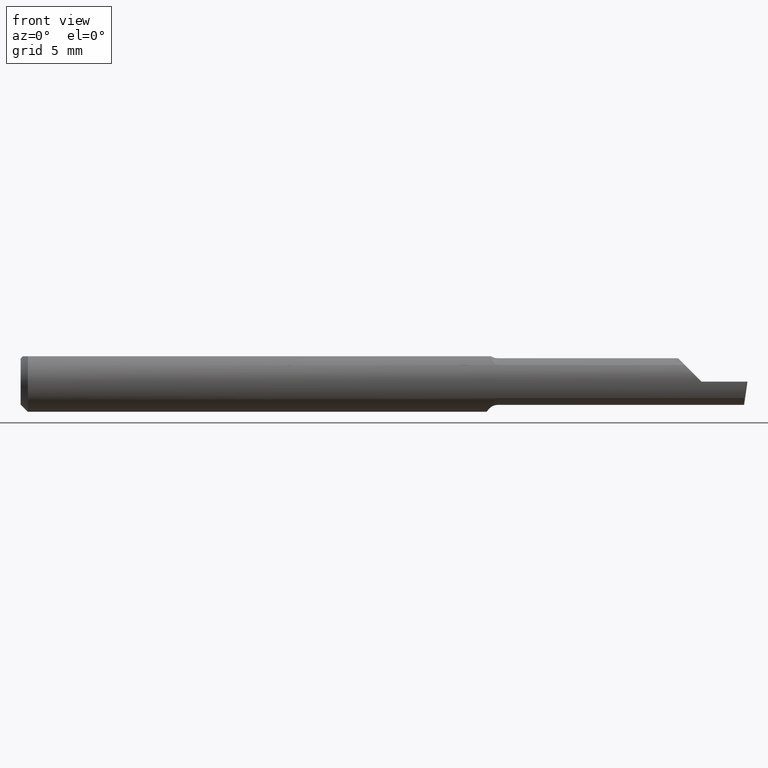
[diagram: clean part render]
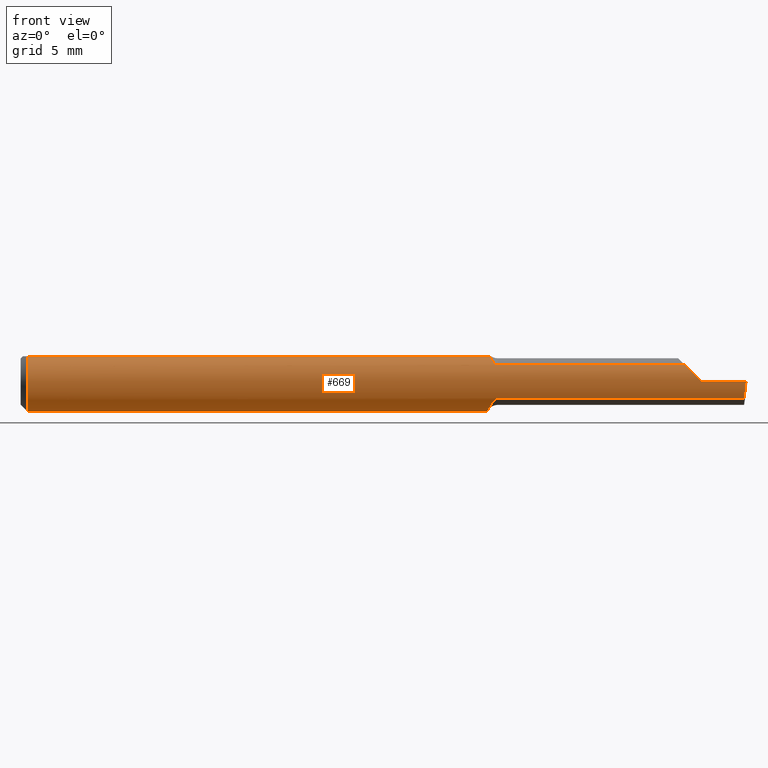
[diagram: same view with one face highlighted and labeled with its STEP entity id]
A machine part, front view. The second image highlights one B-rep face of the part: STEP entity #669.
In plain terms, the highlighted cylindrical surface (edge-blend (fillet) strip) has radius 1.5837 mm, axis along (-1, -0, -0).
Its self-contained STEP definition (entity closure, byte-faithful):
#2 = VECTOR ( 'NONE', #396, 39.37007874015748143 ) ;
#5 = CARTESIAN_POINT ( 'NONE',  ( 0.9752324438157199404, -0.04692169178955603315, 0.04112849538229048502 ) ) ;
#6 = EDGE_CURVE ( 'NONE', #323, #486, #414, .T. ) ;
#10 = CARTESIAN_POINT ( 'NONE',  ( 0.9828708008506147342, -0.05210000000000012538, -0.03425072991922926968 ) ) ;
#15 = VERTEX_POINT ( 'NONE', #621 ) ;
#42 = CARTESIAN_POINT ( 'NONE',  ( 0.9697417421283762717, -0.03819491529868387220, 0.04955034320923033808 ) ) ;
#50 = EDGE_CURVE ( 'NONE', #486, #735, #685, .T. ) ;
#60 = FACE_OUTER_BOUND ( 'NONE', #545, .T. ) ;
#61 = DIRECTION ( 'NONE',  ( -1.000000000000000000, -0.0000000000000000000, -0.0000000000000000000 ) ) ;
#67 = EDGE_CURVE ( 'NONE', #72, #228, #284, .T. ) ;
#72 = VERTEX_POINT ( 'NONE', #632 ) ;
#78 = CARTESIAN_POINT ( 'NONE',  ( 0.9639435274990673097, -0.01839999999999995459, -0.05957316929625284391 ) ) ;
#80 = ORIENTED_EDGE ( 'NONE', *, *, #563, .F. ) ;
#83 = AXIS2_PLACEMENT_3D ( 'NONE', #308, #733, #376 ) ;
#84 = CARTESIAN_POINT ( 'NONE',  ( 1.199999999999999956, -0.05210000000000007681, 0.03425072991922935295 ) ) ;
#85 = LINE ( 'NONE', #84, #714 ) ;
#86 = CARTESIAN_POINT ( 'NONE',  ( 0.0000000000000000000, -0.03386738844375222768, 0.05234999999999997988 ) ) ;
#92 = DIRECTION ( 'NONE',  ( 1.000000000000000000, 0.0000000000000000000, 0.0000000000000000000 ) ) ;
#96 = VERTEX_POINT ( 'NONE', #493 ) ;
#116 = CARTESIAN_POINT ( 'NONE',  ( 1.405000000000000249, -0.06235000000000005121, 1.163414459189982046E-17 ) ) ;
#118 = CARTESIAN_POINT ( 'NONE',  ( 1.380994055934046782, -0.05883495956508443675, 0.02400594406595336905 ) ) ;
#123 = VERTEX_POINT ( 'NONE', #749 ) ;
#131 = CARTESIAN_POINT ( 'NONE',  ( 0.9602082692914427620, 0.01460127996857734853, -0.06118787137580497526 ) ) ;
#142 = CARTESIAN_POINT ( 'NONE',  ( 0.9599999999999999645, 0.02282614954852000763, -0.05862499217990970596 ) ) ;
#149 = ORIENTED_EDGE ( 'NONE', *, *, #480, .T. ) ;
#153 = CARTESIAN_POINT ( 'NONE',  ( 1.199999999999999956, -0.05210000000000007681, -0.03425072991922935295 ) ) ;
#155 = CARTESIAN_POINT ( 'NONE',  ( 2.249639673992775738E-32, -0.06234999999999999570, 1.836970198721025250E-16 ) ) ;
#166 = LINE ( 'NONE', #505, #2 ) ;
#173 = CARTESIAN_POINT ( 'NONE',  ( 0.9613962500143420353, -0.002002297547419323084, -0.06287403108402092600 ) ) ;
#183 = CARTESIAN_POINT ( 'NONE',  ( 0.9623860608652277104, -0.01052139226165770339, -0.06200658662318050268 ) ) ;
#184 = CARTESIAN_POINT ( 'NONE',  ( 0.01500000000000000465, 0.0000000000000000000, 0.0000000000000000000 ) ) ;
#186 = DIRECTION ( 'NONE',  ( 1.000000000000000000, 0.0000000000000000000, 0.0000000000000000000 ) ) ;
#189 = DIRECTION ( 'NONE',  ( 0.0000000000000000000, 0.0000000000000000000, -1.000000000000000000 ) ) ;
#208 = DIRECTION ( 'NONE',  ( -1.000000000000000000, -0.0000000000000000000, -0.0000000000000000000 ) ) ;
#214 = CARTESIAN_POINT ( 'NONE',  ( 0.01500000000000000465, 0.03386738844375223462, 0.05234999999999997988 ) ) ;
#222 = DIRECTION ( 'NONE',  ( -1.000000000000000000, -0.0000000000000000000, -0.0000000000000000000 ) ) ;
#228 = VERTEX_POINT ( 'NONE', #770 ) ;
#230 = CIRCLE ( 'NONE', #661, 0.06235000000000000264 ) ;
#245 = CARTESIAN_POINT ( 'NONE',  ( 1.392739685260043325, -0.06235000000000000264, 0.01226031473995679161 ) ) ;
#252 = CYLINDRICAL_SURFACE ( 'NONE', #699, 0.06235000000000000264 ) ;
#262 = CARTESIAN_POINT ( 'NONE',  ( 0.9768557543361661155, -0.04856891343705597303, -0.03913748562448250701 ) ) ;
#265 = CARTESIAN_POINT ( 'NONE',  ( 0.9736313994831701235, -0.04510599191766692662, -0.04319271381807381766 ) ) ;
#266 = CARTESIAN_POINT ( 'NONE',  ( 1.494315395341277553, -0.05883495956508440899, -0.02400594406595344885 ) ) ;
#267 = CARTESIAN_POINT ( 'NONE',  ( 0.9719606783407127581, -0.04239780856895213057, -0.04588180363204267392 ) ) ;
#272 = CARTESIAN_POINT ( 'NONE',  ( 0.9810018602471947124, -0.05138041438525052518, -0.03535223831097217967 ) ) ;
#274 = CARTESIAN_POINT ( 'NONE',  ( 0.9780636144450135516, -0.04963912592730903434, -0.03775824298307036558 ) ) ;
#278 = EDGE_CURVE ( 'NONE', #228, #525, #293, .T. ) ;
#284 =( BOUNDED_CURVE ( )  B_SPLINE_CURVE ( 3, ( #688, #266, #559, #639 ),
 .UNSPECIFIED., .F., .F. ) 
 B_SPLINE_CURVE_WITH_KNOTS ( ( 4, 4 ),
 ( 0.7791845851203680340, 1.360746882514706213 ),
 .UNSPECIFIED. ) 
 CURVE ( )  GEOMETRIC_REPRESENTATION_ITEM ( )  RATIONAL_B_SPLINE_CURVE ( ( 1.000000000000000000, 0.9720134746468966913, 0.9720134746468966913, 1.000000000000000000 ) ) 
 REPRESENTATION_ITEM ( '' )  );
#293 = LINE ( 'NONE', #155, #356 ) ;
#308 = CARTESIAN_POINT ( 'NONE',  ( 0.01500000000000000465, 0.0000000000000000000, 0.0000000000000000000 ) ) ;
#312 = CARTESIAN_POINT ( 'NONE',  ( 0.01500000000000185039, -0.03386738844380016850, 0.05235000000000000070 ) ) ;
#320 = VECTOR ( 'NONE', #208, 39.37007874015748143 ) ;
#323 = VERTEX_POINT ( 'NONE', #363 ) ;
#324 = CARTESIAN_POINT ( 'NONE',  ( 0.9690023436943706603, -0.03635371779854203872, -0.05080473676934862959 ) ) ;
#325 = CARTESIAN_POINT ( 'NONE',  ( 0.9677747305127012423, -0.03308328010062950436, -0.05299899880320899787 ) ) ;
#333 = CARTESIAN_POINT ( 'NONE',  ( 0.9656294582975117891, -0.02606820000987080180, -0.05677892429946721636 ) ) ;
#338 = CARTESIAN_POINT ( 'NONE',  ( 0.9836283801985743480, -0.05210000000115980190, 0.03425072991746576367 ) ) ;
#342 = DIRECTION ( 'NONE',  ( 0.0000000000000000000, 0.0000000000000000000, 1.000000000000000000 ) ) ;
#343 = B_SPLINE_CURVE_WITH_KNOTS ( 'NONE', 3,
 ( #539, #42, #380, #5, #625, #753, #402, #703, #338, #648 ),
 .UNSPECIFIED., .F., .F.,
 ( 4, 2, 2, 2, 4 ),
 ( 3.799952872692126052E-07, 0.0004056523638566300453, 0.0006082885481413102422, 0.0007096066402836536747, 0.0008109247324259971071 ),
 .UNSPECIFIED. ) ;
#346 = CARTESIAN_POINT ( 'NONE',  ( 0.9647104858884212319, -0.02227973916747848573, -0.05837485801745211783 ) ) ;
#349 = CARTESIAN_POINT ( 'NONE',  ( 0.9639435274990673097, -0.01839999999999995459, -0.05957316929625284391 ) ) ;
#356 = VECTOR ( 'NONE', #222, 39.37007874015748143 ) ;
#363 = CARTESIAN_POINT ( 'NONE',  ( 0.9639435274990673097, -0.01839999999999995459, -0.05957316929625284391 ) ) ;
#368 = LINE ( 'NONE', #86, #320 ) ;
#374 = CARTESIAN_POINT ( 'NONE',  ( 0.9850000000000000977, -0.05210000000000011150, -0.03425072991922927662 ) ) ;
#376 = DIRECTION ( 'NONE',  ( 0.0000000000000000000, 0.0000000000000000000, 1.000000000000000000 ) ) ;
#380 = CARTESIAN_POINT ( 'NONE',  ( 0.9715797100125446173, -0.04200879032723223855, 0.04631940421101467947 ) ) ;
#381 = AXIS2_PLACEMENT_3D ( 'NONE', #638, #186, #189 ) ;
#382 = ORIENTED_EDGE ( 'NONE', *, *, #609, .T. ) ;
#389 = CARTESIAN_POINT ( 'NONE',  ( 0.9600000000000001865, 0.03386738844375224156, 0.05235000000000000070 ) ) ;
#395 = VECTOR ( 'NONE', #696, 39.37007874015748143 ) ;
#396 = DIRECTION ( 'NONE',  ( 1.000000000000000000, 0.0000000000000000000, 0.0000000000000000000 ) ) ;
#402 = CARTESIAN_POINT ( 'NONE',  ( 0.9801117046627794149, -0.05090166660896883882, 0.03601608024180046747 ) ) ;
#406 = ORIENTED_EDGE ( 'NONE', *, *, #554, .F. ) ;
#414 = B_SPLINE_CURVE_WITH_KNOTS ( 'NONE', 3,
 ( #78, #183, #173, #131, #142, #444 ),
 .UNSPECIFIED., .F., .F.,
 ( 4, 2, 4 ),
 ( 0.001277683611626133364, 0.001926233481642344782, 0.002574783351658556201 ),
 .UNSPECIFIED. ) ;
#430 = ORIENTED_EDGE ( 'NONE', *, *, #689, .F. ) ;
#440 = ORIENTED_EDGE ( 'NONE', *, *, #50, .F. ) ;
#444 = CARTESIAN_POINT ( 'NONE',  ( 0.9600000000000001865, 0.03016902173913024385, -0.05456512281030700268 ) ) ;
#454 = VERTEX_POINT ( 'NONE', #374 ) ;
#480 = EDGE_CURVE ( 'NONE', #525, #96, #755, .T. ) ;
#485 = CARTESIAN_POINT ( 'NONE',  ( 1.370749270080770632, -0.05210000000000013232, 0.03425072991922928356 ) ) ;
#486 = VERTEX_POINT ( 'NONE', #679 ) ;
#493 = CARTESIAN_POINT ( 'NONE',  ( 1.370749270080770632, -0.05210000000000013232, 0.03425072991922928356 ) ) ;
#494 = DIRECTION ( 'NONE',  ( 0.0000000000000000000, 0.0000000000000000000, 1.000000000000000000 ) ) ;
#505 = CARTESIAN_POINT ( 'NONE',  ( 0.0000000000000000000, 0.03386738844375223462, 0.05234999999999997988 ) ) ;
#525 = VERTEX_POINT ( 'NONE', #116 ) ;
#539 = CARTESIAN_POINT ( 'NONE',  ( 0.9681439896686973023, -0.03386738844377056717, 0.05235000000000000070 ) ) ;
#545 = EDGE_LOOP ( 'NONE', ( #698, #740, #738, #149, #564, #80, #382, #430, #406, #745, #440, #672, #596 ) ) ;
#554 = EDGE_CURVE ( 'NONE', #573, #15, #778, .T. ) ;
#559 = CARTESIAN_POINT ( 'NONE',  ( 1.495666027076596238, -0.06235000000000000958, -0.01226031473995683498 ) ) ;
#563 = EDGE_CURVE ( 'NONE', #566, #123, #343, .T. ) ;
#564 = ORIENTED_EDGE ( 'NONE', *, *, #651, .F. ) ;
#566 = VERTEX_POINT ( 'NONE', #583 ) ;
#573 = VERTEX_POINT ( 'NONE', #214 ) ;
#583 = CARTESIAN_POINT ( 'NONE',  ( 0.9681439896686973023, -0.03386738844377056717, 0.05235000000000000070 ) ) ;
#596 = ORIENTED_EDGE ( 'NONE', *, *, #725, .F. ) ;
#609 = EDGE_CURVE ( 'NONE', #566, #781, #368, .T. ) ;
#613 = CARTESIAN_POINT ( 'NONE',  ( 1.405000000000000249, -0.06235000000000005121, 1.163414459189982046E-17 ) ) ;
#621 = CARTESIAN_POINT ( 'NONE',  ( 0.01500000000000000465, 0.0000000000000000000, -0.06235000000000000264 ) ) ;
#624 = CARTESIAN_POINT ( 'NONE',  ( 0.9850000000000000977, -0.05210000000000011150, -0.03425072991922927662 ) ) ;
#625 = CARTESIAN_POINT ( 'NONE',  ( 0.9766024100878112346, -0.04843664215652592614, 0.03931692004732156853 ) ) ;
#632 = CARTESIAN_POINT ( 'NONE',  ( 1.493233423732482024, -0.05210000000000007681, -0.03425072991922935295 ) ) ;
#638 = CARTESIAN_POINT ( 'NONE',  ( 0.9600000000000001865, 0.0000000000000000000, 0.0000000000000000000 ) ) ;
#639 = CARTESIAN_POINT ( 'NONE',  ( 1.497171920470529161, -0.06235000000000005121, 3.552677088412748576E-19 ) ) ;
#648 = CARTESIAN_POINT ( 'NONE',  ( 0.9850000000000000977, -0.05210000000000009068, 0.03425072991922929050 ) ) ;
#651 = EDGE_CURVE ( 'NONE', #123, #96, #85, .T. ) ;
#661 = AXIS2_PLACEMENT_3D ( 'NONE', #184, #61, #494 ) ;
#664 = EDGE_CURVE ( 'NONE', #72, #454, #732, .T. ) ;
#669 = ADVANCED_FACE ( 'NONE', ( #60 ), #252, .T. ) ;
#672 = ORIENTED_EDGE ( 'NONE', *, *, #6, .F. ) ;
#679 = CARTESIAN_POINT ( 'NONE',  ( 0.9600000000000001865, 0.03016902173913024385, -0.05456512281030700268 ) ) ;
#684 = DIRECTION ( 'NONE',  ( -1.000000000000000000, -0.0000000000000000000, -0.0000000000000000000 ) ) ;
#685 = CIRCLE ( 'NONE', #381, 0.06235000000000000264 ) ;
#688 = CARTESIAN_POINT ( 'NONE',  ( 1.493233423732482024, -0.05210000000000007681, -0.03425072991922935295 ) ) ;
#689 = EDGE_CURVE ( 'NONE', #15, #781, #230, .T. ) ;
#693 = B_SPLINE_CURVE_WITH_KNOTS ( 'NONE', 3,
 ( #624, #10, #272, #274, #262, #265, #267, #324, #325, #333, #346, #349 ),
 .UNSPECIFIED., .F., .F.,
 ( 4, 2, 2, 2, 2, 4 ),
 ( 1.968188672663559467E-07, 0.0001598826679621269333, 0.0003195685170569875040, 0.0006389402152467027907, 0.0009583119134364181859, 0.001277683611626133364 ),
 .UNSPECIFIED. ) ;
#696 = DIRECTION ( 'NONE',  ( -1.000000000000000000, -0.0000000000000000000, -0.0000000000000000000 ) ) ;
#698 = ORIENTED_EDGE ( 'NONE', *, *, #664, .F. ) ;
#699 = AXIS2_PLACEMENT_3D ( 'NONE', #756, #684, #342 ) ;
#703 = CARTESIAN_POINT ( 'NONE',  ( 0.9823254665516394368, -0.05179156103573025194, 0.03472422648579306936 ) ) ;
#714 = VECTOR ( 'NONE', #92, 39.37007874015748143 ) ;
#725 = EDGE_CURVE ( 'NONE', #454, #323, #693, .T. ) ;
#732 = LINE ( 'NONE', #153, #395 ) ;
#733 = DIRECTION ( 'NONE',  ( -1.000000000000000000, -0.0000000000000000000, -0.0000000000000000000 ) ) ;
#735 = VERTEX_POINT ( 'NONE', #389 ) ;
#738 = ORIENTED_EDGE ( 'NONE', *, *, #278, .T. ) ;
#740 = ORIENTED_EDGE ( 'NONE', *, *, #67, .T. ) ;
#745 = ORIENTED_EDGE ( 'NONE', *, *, #758, .T. ) ;
#749 = CARTESIAN_POINT ( 'NONE',  ( 0.9850000000000000977, -0.05210000000000009068, 0.03425072991922929050 ) ) ;
#753 = CARTESIAN_POINT ( 'NONE',  ( 0.9791789796355747644, -0.05033758282015995261, 0.03680695256572111967 ) ) ;
#755 =( BOUNDED_CURVE ( )  B_SPLINE_CURVE ( 3, ( #613, #245, #118, #485 ),
 .UNSPECIFIED., .F., .F. ) 
 B_SPLINE_CURVE_WITH_KNOTS ( ( 4, 4 ),
 ( 4.712388980384689674, 5.293951277779025411 ),
 .UNSPECIFIED. ) 
 CURVE ( )  GEOMETRIC_REPRESENTATION_ITEM ( )  RATIONAL_B_SPLINE_CURVE ( ( 1.000000000000000000, 0.9720134746468970244, 0.9720134746468970244, 1.000000000000000000 ) ) 
 REPRESENTATION_ITEM ( '' )  );
#756 = CARTESIAN_POINT ( 'NONE',  ( 0.0000000000000000000, 0.0000000000000000000, 0.0000000000000000000 ) ) ;
#758 = EDGE_CURVE ( 'NONE', #573, #735, #166, .T. ) ;
#770 = CARTESIAN_POINT ( 'NONE',  ( 1.497171920470529161, -0.06235000000000005121, 3.552677088412748576E-19 ) ) ;
#778 = CIRCLE ( 'NONE', #83, 0.06235000000000000264 ) ;
#781 = VERTEX_POINT ( 'NONE', #312 ) ;